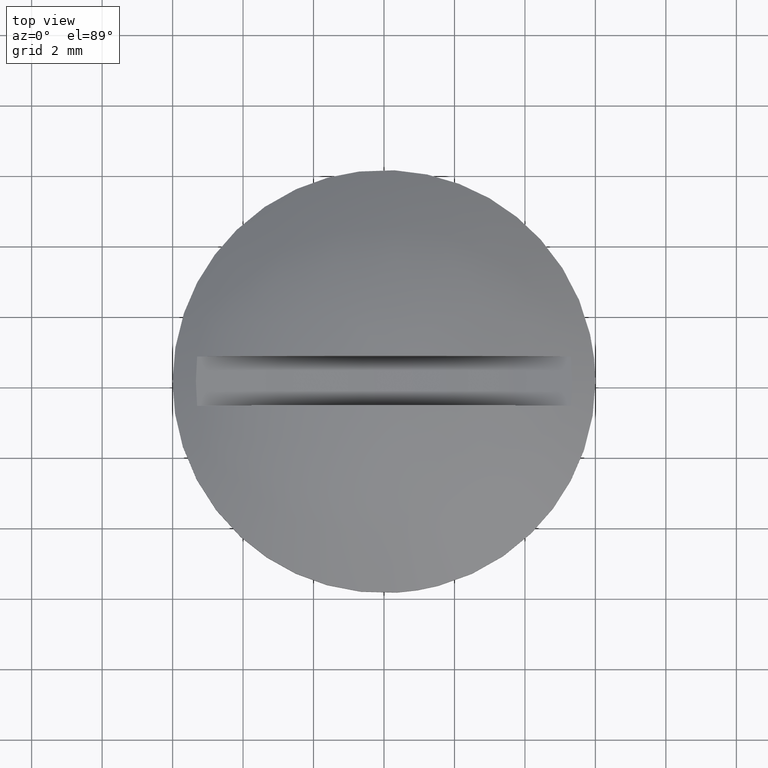
[diagram: clean part render]
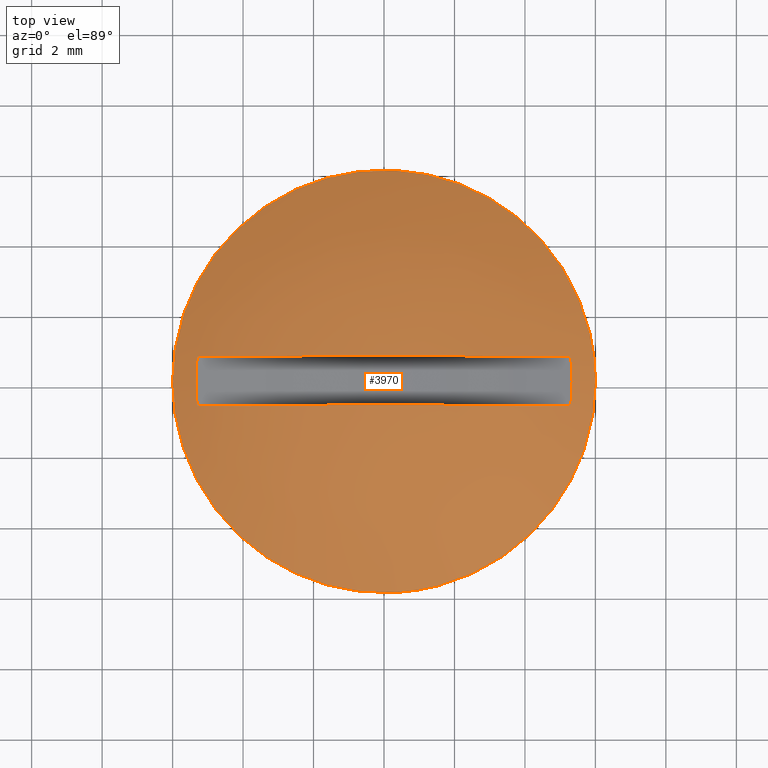
[diagram: same view with one face highlighted and labeled with its STEP entity id]
A machine part, top view. The second image highlights one B-rep face of the part: STEP entity #3970.
In plain terms, the highlighted face is a freeform B-spline surface patch.
Its self-contained STEP definition (entity closure, byte-faithful):
#765=CARTESIAN_POINT('',(-0.708201660671828,5.958057603599299,0.500000000000000));
#766=VERTEX_POINT('',#765);
#772=CARTESIAN_POINT('',(6.0,0.0,0.500000000000000));
#773=VERTEX_POINT('',#772);
#774=CARTESIAN_POINT('',(-0.708201660671828,5.958057603599301,0.500000000000000));
#775=CARTESIAN_POINT('',(-0.355342824469453,6.0,0.500000000000000));
#776=CARTESIAN_POINT('',(0.0,6.0,0.500000000000000));
#777=CARTESIAN_POINT('',(6.0,6.0,0.500000000000000));
#778=CARTESIAN_POINT('',(6.0,0.0,0.500000000000000));
#786=(BOUNDED_CURVE()B_SPLINE_CURVE(2,(#774,#775,#776,#777,#778),.UNSPECIFIED.,.F.,.U.)B_SPLINE_CURVE_WITH_KNOTS((3,2,3),(0.229562579808786,0.250000000000000,0.500000000000000),.UNSPECIFIED.)CURVE()GEOMETRIC_REPRESENTATION_ITEM()RATIONAL_B_SPLINE_CURVE((0.956026962526900,0.976056072863809,1.0,0.707106781186548,1.0))REPRESENTATION_ITEM(''));
#787=EDGE_CURVE('',#766,#773,#786,.T.);
#789=CARTESIAN_POINT('',(0.366289120546966,-5.988808919991055,0.500000000000000));
#790=VERTEX_POINT('',#789);
#791=CARTESIAN_POINT('',(6.0,0.0,0.500000000000000));
#792=CARTESIAN_POINT('',(6.000000000000001,-5.644238400040059,0.500000000000000));
#793=CARTESIAN_POINT('',(0.366289120546966,-5.988808919991055,0.500000000000000));
#801=(BOUNDED_CURVE()B_SPLINE_CURVE(2,(#791,#792,#793),.UNSPECIFIED.,.F.,.U.)B_SPLINE_CURVE_WITH_KNOTS((3,3),(0.500000000000000,0.739333023226263),.UNSPECIFIED.)CURVE()GEOMETRIC_REPRESENTATION_ITEM()RATIONAL_B_SPLINE_CURVE((1.0,0.719603921835620,0.976072172374189))REPRESENTATION_ITEM(''));
#802=EDGE_CURVE('',#773,#790,#801,.T.);
#876=CARTESIAN_POINT('',(-6.0,0.0,0.500000000000000));
#877=VERTEX_POINT('',#876);
#878=CARTESIAN_POINT('',(0.366289120546966,-5.988808919991055,0.500000000000000));
#879=CARTESIAN_POINT('',(0.183315518493018,-6.0,0.500000000000000));
#880=CARTESIAN_POINT('',(0.0,-6.0,0.500000000000000));
#881=CARTESIAN_POINT('',(-6.0,-6.0,0.500000000000000));
#882=CARTESIAN_POINT('',(-6.0,0.0,0.500000000000000));
#890=(BOUNDED_CURVE()B_SPLINE_CURVE(2,(#878,#879,#880,#881,#882),.UNSPECIFIED.,.F.,.U.)B_SPLINE_CURVE_WITH_KNOTS((3,2,3),(0.739333023226263,0.750000000000000,1.0),.UNSPECIFIED.)CURVE()GEOMETRIC_REPRESENTATION_ITEM()RATIONAL_B_SPLINE_CURVE((0.976072172374189,0.987502859350927,1.0,0.707106781186548,1.0))REPRESENTATION_ITEM(''));
#891=EDGE_CURVE('',#790,#877,#890,.T.);
#893=CARTESIAN_POINT('',(-6.0,0.0,0.500000000000000));
#894=CARTESIAN_POINT('',(-6.000000000000001,5.329050530961814,0.500000000000000));
#895=CARTESIAN_POINT('',(-0.708201660671828,5.958057603599301,0.500000000000000));
#903=(BOUNDED_CURVE()B_SPLINE_CURVE(2,(#893,#894,#895),.UNSPECIFIED.,.F.,.U.)B_SPLINE_CURVE_WITH_KNOTS((3,3),(0.0,0.229562579808786),.UNSPECIFIED.)CURVE()GEOMETRIC_REPRESENTATION_ITEM()RATIONAL_B_SPLINE_CURVE((1.0,0.731050708322738,0.956026962526900))REPRESENTATION_ITEM(''));
#904=EDGE_CURVE('',#877,#766,#903,.T.);
#3811=CARTESIAN_POINT('',(-5.303562853731459,-0.699997000000000,0.871922437406934));
#3812=VERTEX_POINT('',#3811);
#3813=CARTESIAN_POINT('',(5.303562853731459,-0.699997000000000,0.871922437406934));
#3814=VERTEX_POINT('',#3813);
#3828=CARTESIAN_POINT('',(5.303562853731459,-0.699997000000000,0.871922437406934));
#3829=CARTESIAN_POINT('',(4.336809E-015,-0.699997000000000,3.654050891943375));
#3830=CARTESIAN_POINT('',(-5.303562853731469,-0.699997000000000,0.871922437406952));
#3838=(BOUNDED_CURVE()B_SPLINE_CURVE(2,(#3828,#3829,#3830),.UNSPECIFIED.,.F.,.U.)CURVE()GEOMETRIC_REPRESENTATION_ITEM()QUASI_UNIFORM_CURVE()RATIONAL_B_SPLINE_CURVE((1.0,0.885551927244557,1.0))REPRESENTATION_ITEM(''));
#3839=EDGE_CURVE('',#3814,#3812,#3838,.T.);
#3849=CARTESIAN_POINT('',(5.303562853731459,0.699996999999907,0.871922437406934));
#3850=VERTEX_POINT('',#3849);
#3851=CARTESIAN_POINT('',(-5.303562853731459,0.699996999999907,0.871922437406934));
#3852=VERTEX_POINT('',#3851);
#3853=CARTESIAN_POINT('',(5.303562853731459,0.699996999999907,0.871922437406934));
#3854=CARTESIAN_POINT('',(4.336809E-015,0.699996999999910,3.654050891943375));
#3855=CARTESIAN_POINT('',(-5.303562853731469,0.699996999999910,0.871922437406952));
#3863=(BOUNDED_CURVE()B_SPLINE_CURVE(2,(#3853,#3854,#3855),.UNSPECIFIED.,.F.,.U.)CURVE()GEOMETRIC_REPRESENTATION_ITEM()QUASI_UNIFORM_CURVE()RATIONAL_B_SPLINE_CURVE((1.0,0.885551927244557,1.0))REPRESENTATION_ITEM(''));
#3864=EDGE_CURVE('',#3850,#3852,#3863,.T.);
#3897=CARTESIAN_POINT('',(-5.303562853731472,-0.699997000000000,0.871922437406934));
#3898=CARTESIAN_POINT('',(-5.327837280465762,-0.466664666666683,0.875343843874204));
#3899=CARTESIAN_POINT('',(-5.351858492111501,-4.743385E-014,0.878765250341469));
#3900=CARTESIAN_POINT('',(-5.327837280465761,0.466664666666589,0.875343843874209));
#3901=CARTESIAN_POINT('',(-5.303562853731474,0.699996999999907,0.871922437406939));
#3902=B_SPLINE_CURVE_WITH_KNOTS('',3,(#3897,#3898,#3899,#3900,#3901),.UNSPECIFIED.,.F.,.U.,(4,1,4),(0.0,0.500000000000000,1.0),.UNSPECIFIED.);
#3903=EDGE_CURVE('',#3812,#3852,#3902,.T.);
#3906=CARTESIAN_POINT('',(5.303562853731459,0.699996999999907,0.871922437406934));
#3907=CARTESIAN_POINT('',(5.327837280465756,0.466664666666589,0.875343843874210));
#3908=CARTESIAN_POINT('',(5.351858492111494,-4.667490E-014,0.878765250341474));
#3909=CARTESIAN_POINT('',(5.327837280465755,-0.466664666666682,0.875343843874207));
#3910=CARTESIAN_POINT('',(5.303562853731465,-0.699997000000000,0.871922437406936));
#3911=B_SPLINE_CURVE_WITH_KNOTS('',3,(#3906,#3907,#3908,#3909,#3910),.UNSPECIFIED.,.F.,.U.,(4,1,4),(0.0,0.500000000000000,1.0),.UNSPECIFIED.);
#3912=EDGE_CURVE('',#3850,#3814,#3911,.T.);
#3934=CARTESIAN_POINT('',(-5.969675992943822,-5.969543951738399,-1.520682928140492));
#3935=CARTESIAN_POINT('',(-3.249060713657501,-6.497977697607182,0.175019227125430));
#3936=CARTESIAN_POINT('',(3.249060519192920,-6.497977697607182,0.175019227125430));
#3937=CARTESIAN_POINT('',(5.969675693756791,-5.969544009850441,-1.520682741663530));
#3938=CARTESIAN_POINT('',(-6.498095981320763,-3.248976126087892,0.174937574745695));
#3939=CARTESIAN_POINT('',(-3.564590069219285,-3.564511225280334,2.199992000000091));
#3940=CARTESIAN_POINT('',(3.564589855869465,-3.564511225280334,2.199992000000091));
#3941=CARTESIAN_POINT('',(6.498095661249862,-3.248976160515501,0.174937795696661));
#3942=CARTESIAN_POINT('',(-6.498095981320763,3.248994055083637,0.174937574745699));
#3943=CARTESIAN_POINT('',(-3.564590069219285,3.564530895510002,2.199992000000097));
#3944=CARTESIAN_POINT('',(3.564589855869465,3.564530895510002,2.199992000000097));
#3945=CARTESIAN_POINT('',(6.498095661249862,3.248994089511437,0.174937795696665));
#3946=CARTESIAN_POINT('',(-5.969670635173105,5.969571536104832,-1.520700120423278));
#3947=CARTESIAN_POINT('',(-3.249057539501856,6.498007207533199,0.174998856346478));
#3948=CARTESIAN_POINT('',(3.249057345037464,6.498007207533199,0.174998856346478));
#3949=CARTESIAN_POINT('',(5.969670335986299,5.969571594217096,-1.520699933946654));
#3957=(BOUNDED_SURFACE()B_SPLINE_SURFACE(2,2,((#3934,#3938,#3942,#3946),(#3935,#3939,#3943,#3947),(#3936,#3940,#3944,#3948),(#3937,#3941,#3945,#3949)),.UNSPECIFIED.,.F.,.F.,.U.)B_SPLINE_SURFACE_WITH_KNOTS((3,1,3),(3,1,3),(1.175170707547665,7.855777368122124,14.536383628845220),(1.175318473583460,7.855777368122121,14.536273127788309),.UNSPECIFIED.)GEOMETRIC_REPRESENTATION_ITEM()RATIONAL_B_SPLINE_SURFACE(((1.194232341397638,1.097118318801677,1.097118318801677,1.194233413219428),(1.097114022595961,1.0,1.0,1.097115094417751),(1.097114022595961,1.0,1.0,1.097115094417751),(1.194232329772080,1.097118307176119,1.097118307176119,1.194233401593869)))REPRESENTATION_ITEM('')SURFACE());
#3958=ORIENTED_EDGE('',*,*,#891,.F.);
#3959=ORIENTED_EDGE('',*,*,#802,.F.);
#3960=ORIENTED_EDGE('',*,*,#787,.F.);
#3961=ORIENTED_EDGE('',*,*,#904,.F.);
#3962=EDGE_LOOP('',(#3958,#3959,#3960,#3961));
#3963=FACE_OUTER_BOUND('',#3962,.T.);
#3964=ORIENTED_EDGE('',*,*,#3864,.F.);
#3965=ORIENTED_EDGE('',*,*,#3912,.T.);
#3966=ORIENTED_EDGE('',*,*,#3839,.T.);
#3967=ORIENTED_EDGE('',*,*,#3903,.T.);
#3968=EDGE_LOOP('',(#3964,#3965,#3966,#3967));
#3969=FACE_BOUND('',#3968,.T.);
#3970=ADVANCED_FACE('',(#3963,#3969),#3957,.T.);